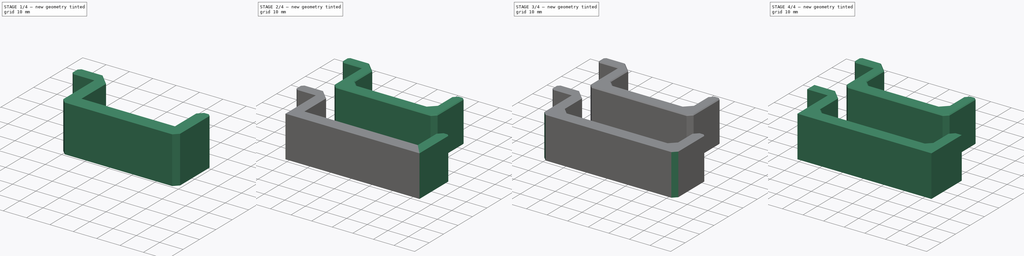
[diagram: build sequence overview — one tinted view per stage of 4, left to right]
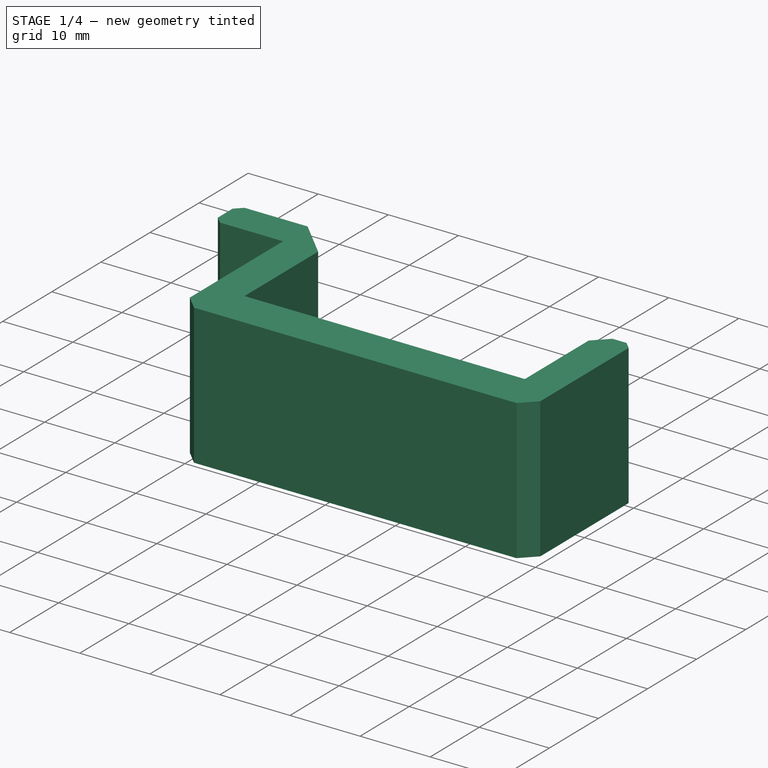
[diagram: stage 1 of 4 — iso view after this stage's code; geometry added in this stage tinted green]
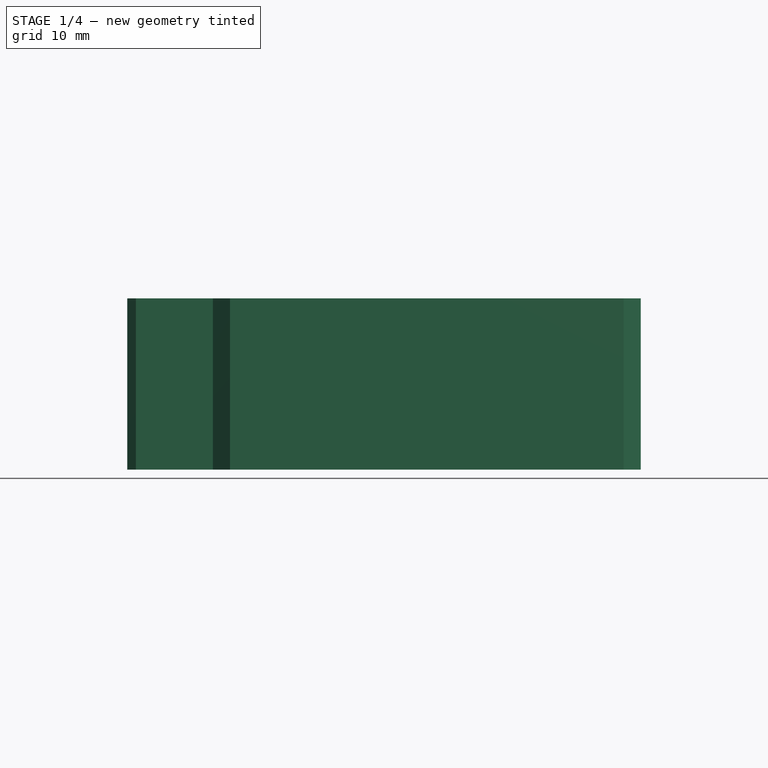
[diagram: stage 1 of 4 — front view after this stage's code; geometry added in this stage tinted green]
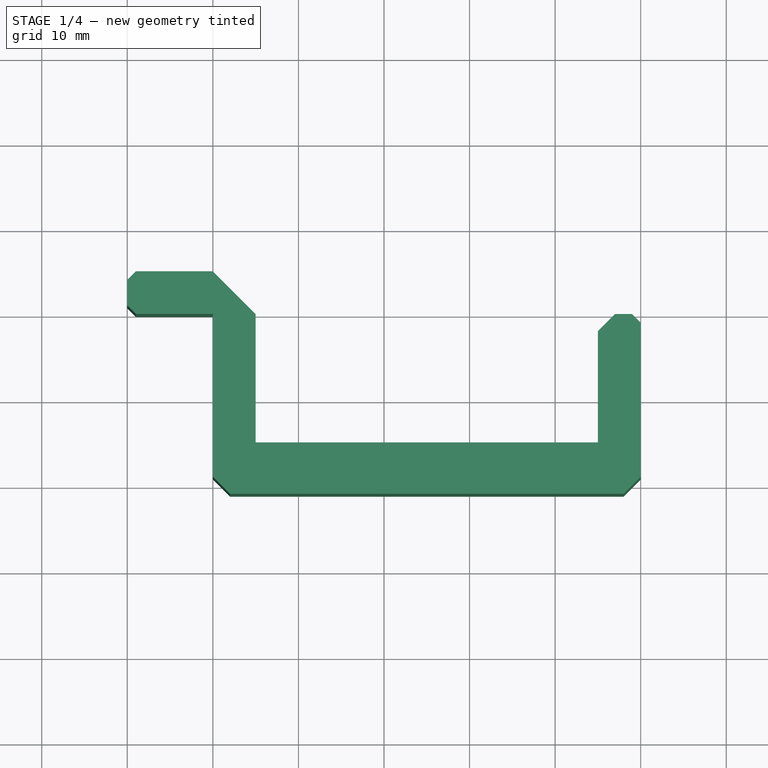
[diagram: stage 1 of 4 — top view after this stage's code; geometry added in this stage tinted green]
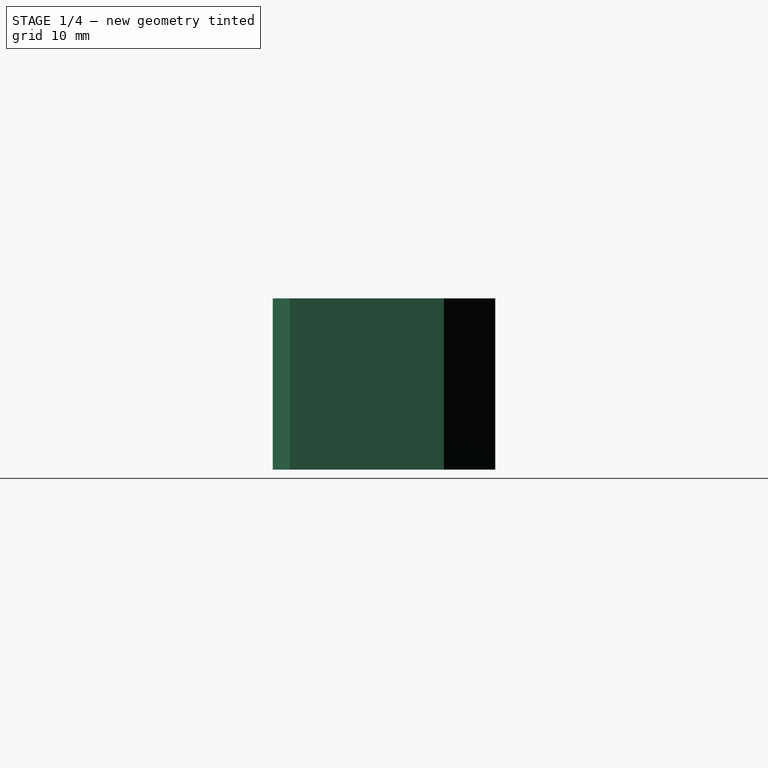
[diagram: stage 1 of 4 — right view after this stage's code; geometry added in this stage tinted green]
FCSTD DOCUMENT  (FreeCAD 0.18R14555 (Git shallow))
Label: rail-build-helper
License: All rights reserved
LicenseURL: http://en.wikipedia.org/wiki/All_rights_reserved
objects: Part::Chamfer×9, Part::Feature×2, Sketcher::SketchObject×1, PartDesign::Pad×1, PartDesign::Body×1
note: 15 computed .brp shape members not serialized (recipe doc carries the construction recipe); baked Part::Feature solids carry a one-line shape summary decoded from their .brp

FEATURE [Part::Chamfer] Chamfer005
  Base = -> Body001
  Edges = 3 edges r=1: [Edge1,Edge11,Edge32]
FEATURE [Part::Chamfer] Chamfer006
  Base = -> Chamfer005
  Edges = 2 edges r=2: [Edge21,Edge36]
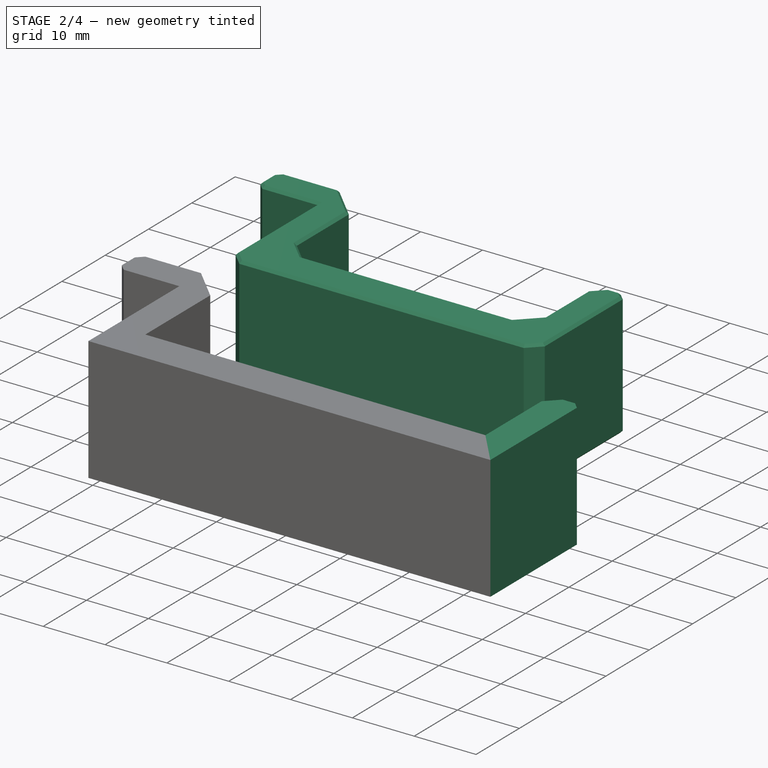
[diagram: stage 2 of 4 — iso view after this stage's code; geometry added in this stage tinted green]
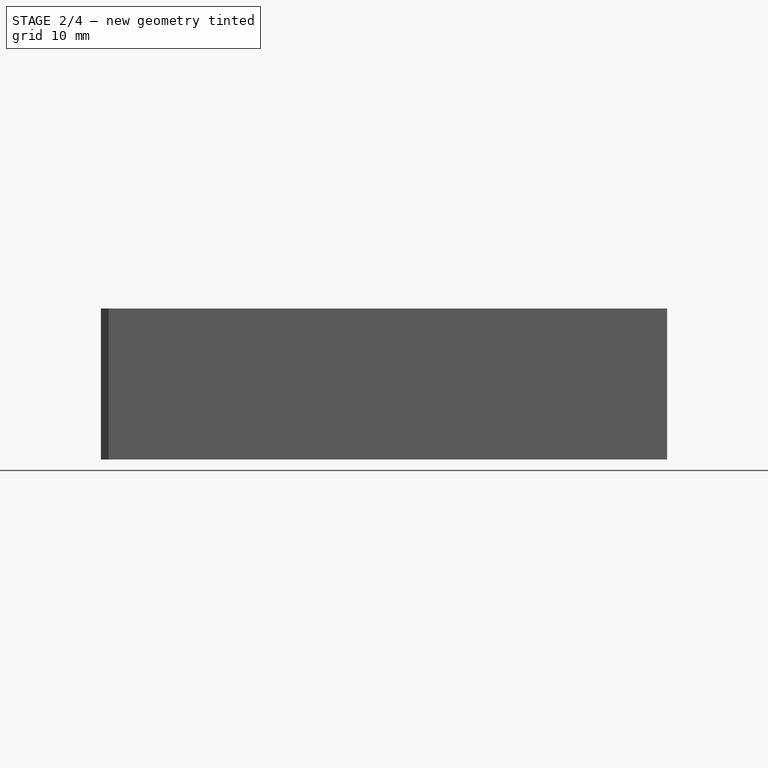
[diagram: stage 2 of 4 — front view after this stage's code; geometry added in this stage tinted green]
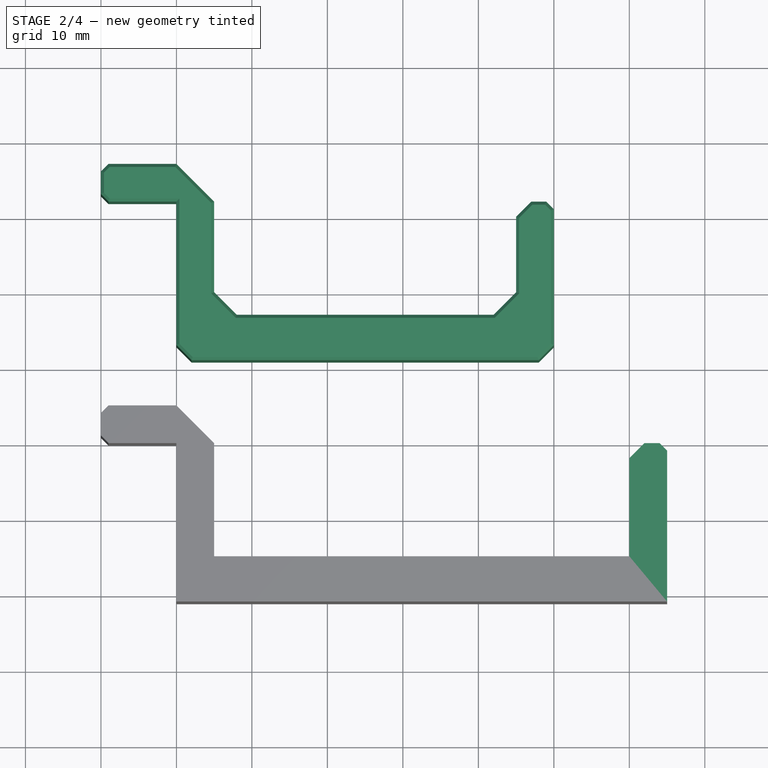
[diagram: stage 2 of 4 — top view after this stage's code; geometry added in this stage tinted green]
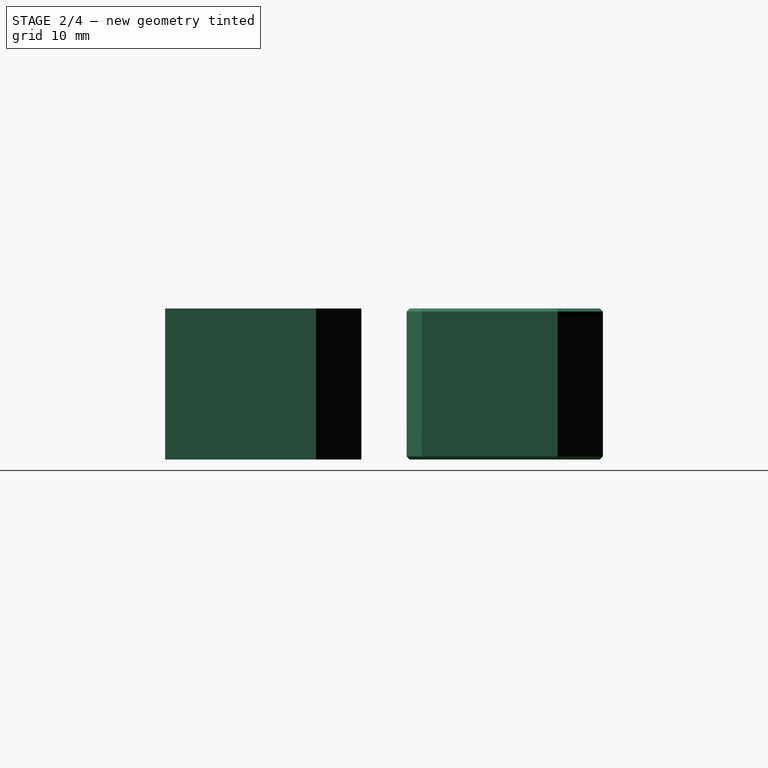
[diagram: stage 2 of 4 — right view after this stage's code; geometry added in this stage tinted green]
FEATURE [PartDesign::Body] Body
  Group = -> [Sketch,Pad]
  Origin = -> Origin
  Tip = -> Pad
FEATURE [Part::Feature] Body002  label="65mm-spacer"
  shape: bbox 75 x 26 x 20 mm, 14 faces (baked)
FEATURE [Part::Chamfer] Chamfer
  Base = -> Body002
  Edges = 3 edges r=1: [Edge1,Edge11,Edge32]
FEATURE [Part::Chamfer] Chamfer007
  Base = -> Chamfer006
  Edges = 2 edges r=3: [Edge47,Edge49]
FEATURE [Part::Chamfer] Chamfer008  label="50"
  Base = -> Chamfer007
  Edges = 38 edges r=0.4: [Edge1,Edge2,Edge3,Edge4,Edge5,Edge6,Edge7,Edge8,Edge9,Edge10,Edge11,Edge12,Edge13,Edge14,Edge15,Edge16,Edge17,Edge18,Edge19,Edge22,Edge24,Edge26,Edge28,Edge30,Edge32,Edge34,Edge36,Edge38,Edge40,Edge42,Edge44,Edge46,Edge48,Edge50,Edge52,Edge54,Edge56,Edge57]
  Placement = pos=(0,32,0) rot=(0,0,1;0rad)
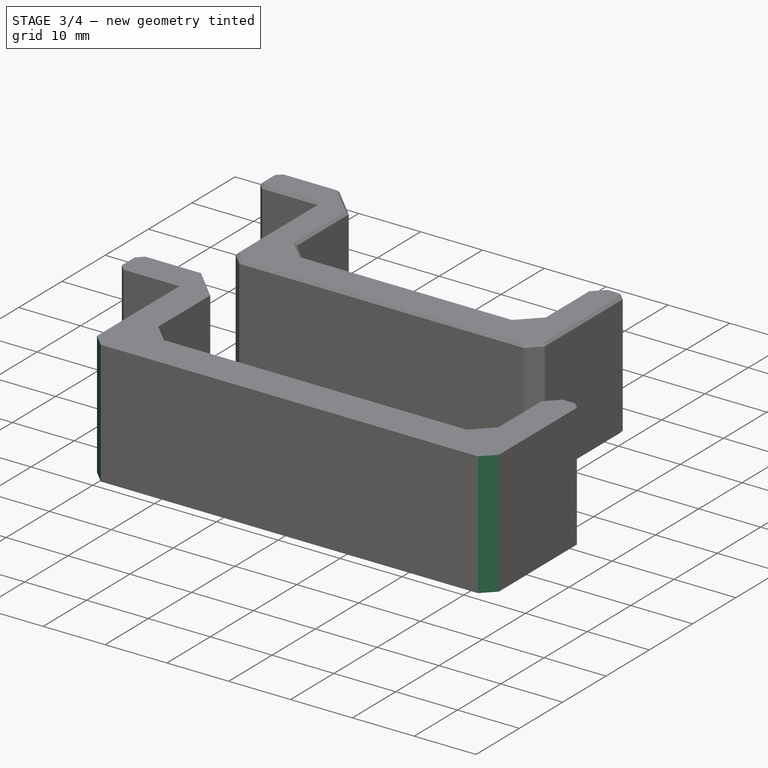
[diagram: stage 3 of 4 — iso view after this stage's code; geometry added in this stage tinted green]
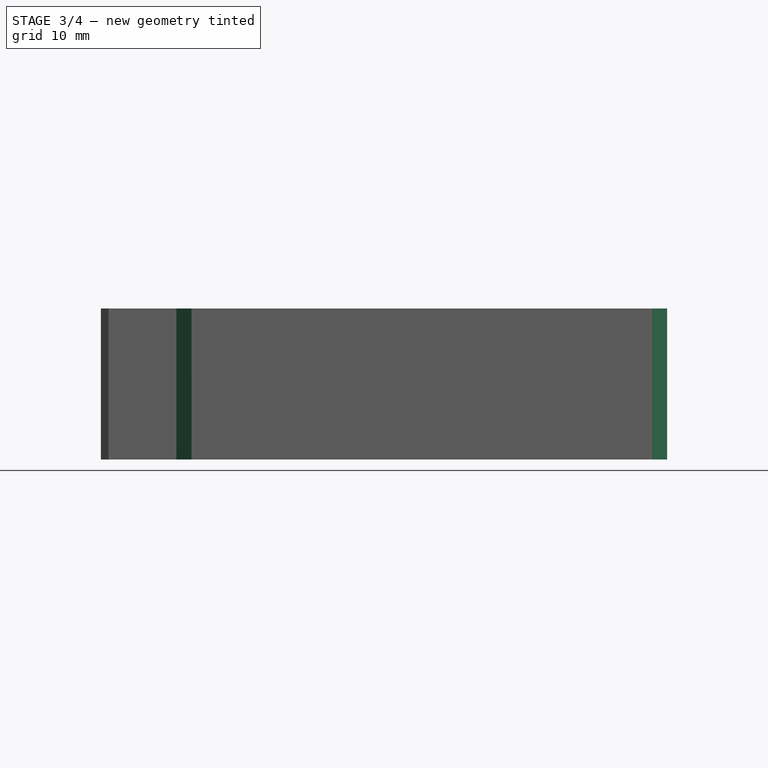
[diagram: stage 3 of 4 — front view after this stage's code; geometry added in this stage tinted green]
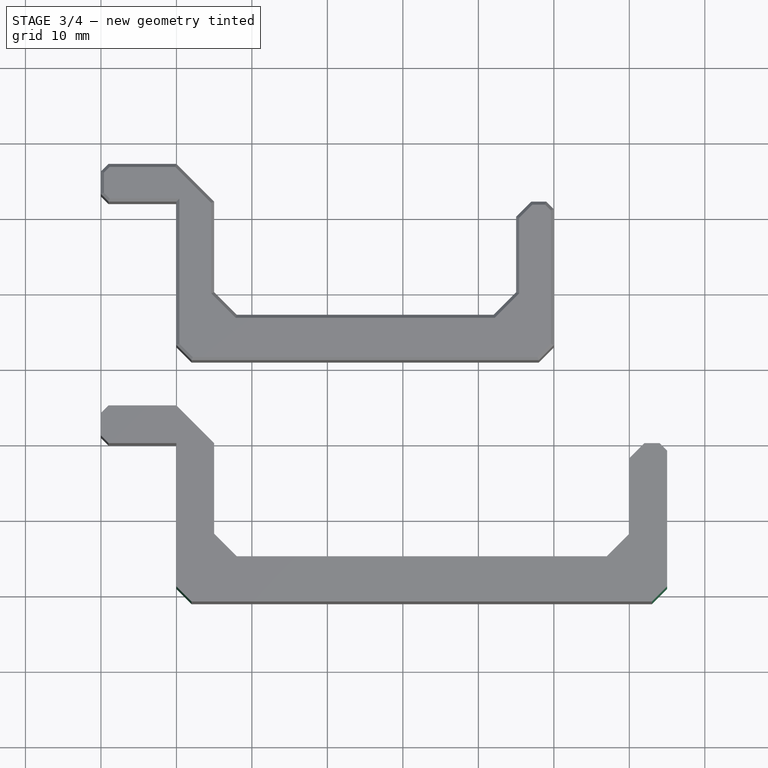
[diagram: stage 3 of 4 — top view after this stage's code; geometry added in this stage tinted green]
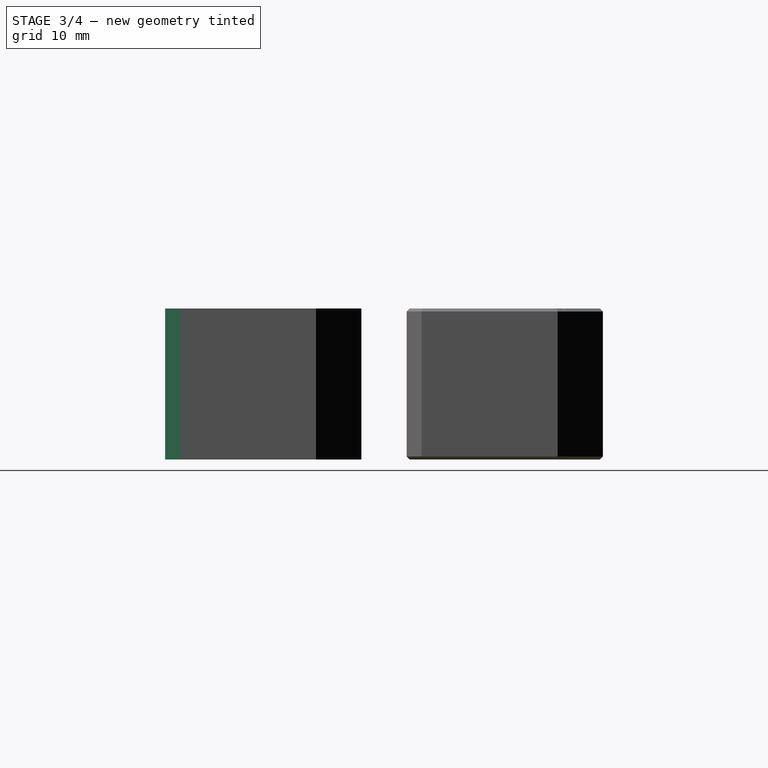
[diagram: stage 3 of 4 — right view after this stage's code; geometry added in this stage tinted green]
FEATURE [Part::Chamfer] Chamfer001
  Base = -> Chamfer
  Edges = 1 edges r=2: [Edge21]
FEATURE [Part::Chamfer] Chamfer002
  Base = -> Chamfer001
  Edges = 2 edges r=3: [Edge44,Edge46]
FEATURE [Part::Chamfer] Chamfer003
  Base = -> Chamfer002
  Edges = 1 edges r=2: [Edge36]
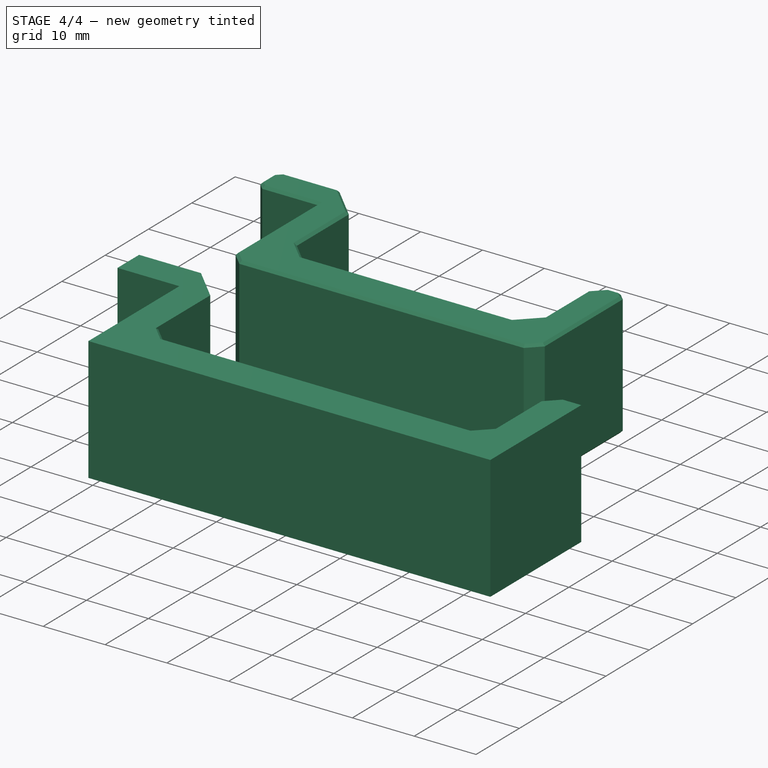
[diagram: stage 4 of 4 — iso view after this stage's code; geometry added in this stage tinted green]
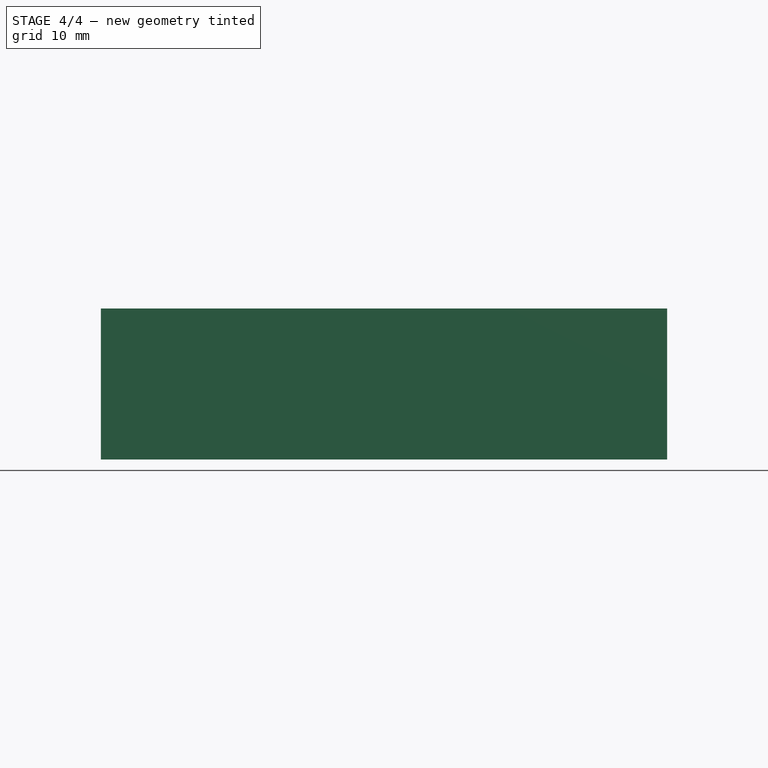
[diagram: stage 4 of 4 — front view after this stage's code; geometry added in this stage tinted green]
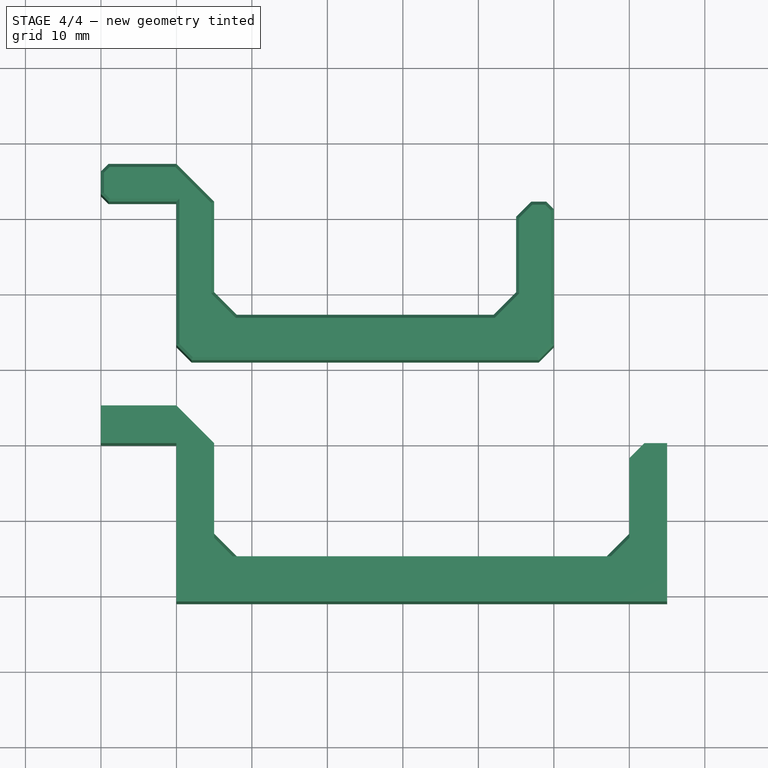
[diagram: stage 4 of 4 — top view after this stage's code; geometry added in this stage tinted green]
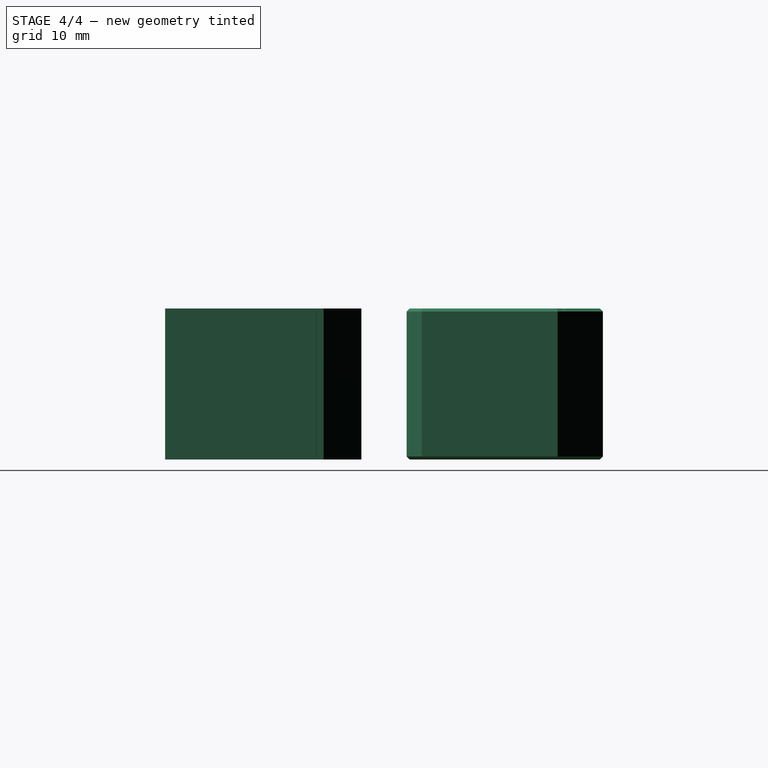
[diagram: stage 4 of 4 — right view after this stage's code; geometry added in this stage tinted green]
FEATURE [Sketcher::SketchObject] Sketch
  MapMode = 5
  Support = -> [XY_Plane]
  sketch-geometry (12):
    g0: LineSegment StartX=0 StartY=0 StartZ=0 EndX=10 EndY=0 EndZ=0
    g1: LineSegment StartX=10 StartY=0 StartZ=0 EndX=10 EndY=-21 EndZ=0
    g2: LineSegment StartX=10 StartY=-21 StartZ=0 EndX=75 EndY=-21 EndZ=0
    g3: LineSegment StartX=75 StartY=-21 StartZ=0 EndX=75 EndY=0 EndZ=0
    g4: LineSegment StartX=0 StartY=0 StartZ=0 EndX=0 EndY=5 EndZ=0
    g5: LineSegment StartX=0 StartY=5 StartZ=0 EndX=10 EndY=5 EndZ=0
    g6: LineSegment StartX=10 StartY=5 StartZ=0 EndX=15 EndY=8.9e-15 EndZ=0
    g7: LineSegment StartX=75 StartY=0 StartZ=0 EndX=72 EndY=0 EndZ=0
    g8: LineSegment StartX=72 StartY=0 StartZ=0 EndX=70 EndY=-2 EndZ=0
    g9: LineSegment StartX=15 StartY=8.9e-15 StartZ=0 EndX=15 EndY=-15 EndZ=0
    g10: LineSegment StartX=70 StartY=-2 StartZ=0 EndX=70 EndY=-15 EndZ=0
    g11: LineSegment StartX=15 StartY=-15 StartZ=0 EndX=70 EndY=-15 EndZ=0
  constraints (35):
    c: DistanceX(g0,g0) = 10
    c: Coincident(g-1,g0)
    c: Coincident(g0,g1)
    c: Horizontal(g0)
    c: Vertical(g1)
    c: DistanceY(g1,g1) = 21
    c: Horizontal(g2)
    c: DistanceX(g2,g2) = 65
    c: Coincident(g1,g2)
    c: Vertical(g3)
    c: DistanceY(g3,g3) = 21
    c: Coincident(g2,g3)
    c: Horizontal(g5)
    c: DistanceX(g5,g5) = 10
    c: Vertical(g4)
    c: DistanceY(g4,g4) = 5
    c: Coincident(g0,g4)
    c: Coincident(g4,g5)
    c: Coincident(g5,g6)
    c: Angle(g5,g6) = 2.35619
    c: DistanceX(g0,g6) = 5
    c: Coincident(g3,g7)
    c: Horizontal(g7)
    c: DistanceX(g7,g7) = 3
    c: Coincident(g7,g8)
    c: Angle(g8,g7) = 2.35619
    c: DistanceX(g8,g7) = 2
    c: Vertical(g9)
    c: Coincident(g6,g9)
    c: DistanceY(g9,g9) = 15
    c: Vertical(g10)
    c: Coincident(g8,g10)
    c: DistanceY(g10,g10) = 13
    c: Coincident(g9,g11)
    c: Coincident(g10,g11)
FEATURE [Part::Feature] Body001  label="50mm-spacer"
  shape: bbox 60 x 26 x 20 mm, 14 faces (baked)
FEATURE [PartDesign::Pad] Pad
  Length = 20
  Length2 = 100
  Profile = -> Sketch
  Type = 0
FEATURE [Part::Chamfer] Chamfer004  label="65"
  Base = -> Chamfer003
  Edges = 38 edges r=0.4: [Edge1,Edge2,Edge3,Edge4,Edge5,Edge6,Edge7,Edge8,Edge9,Edge10,Edge11,Edge12,Edge13,Edge14,Edge15,Edge16,Edge17,Edge18,Edge19,Edge22,Edge24,Edge26,Edge28,Edge30,Edge32,Edge34,Edge36,Edge38,Edge40,Edge42,Edge44,Edge46,Edge48,Edge50,Edge52,Edge54,Edge56,Edge57]
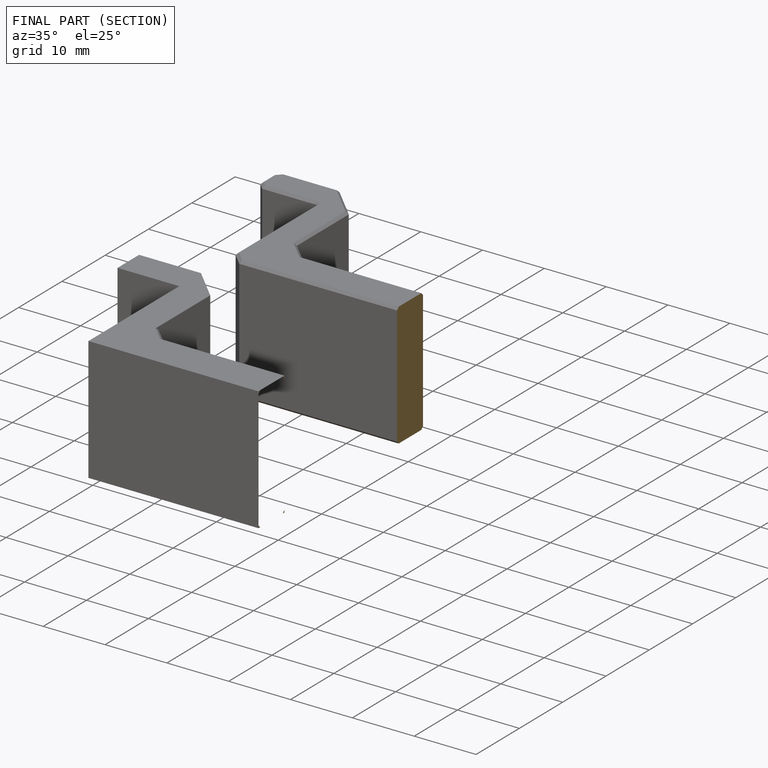
[diagram: finished part — half-section view (interior)]
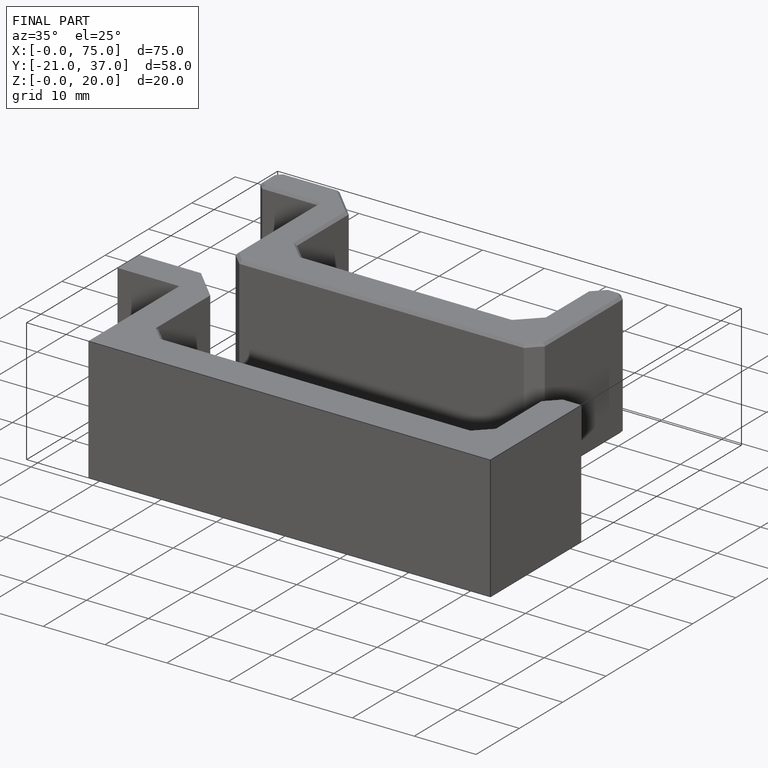
[diagram: finished part — iso view with bounding-box wireframe]
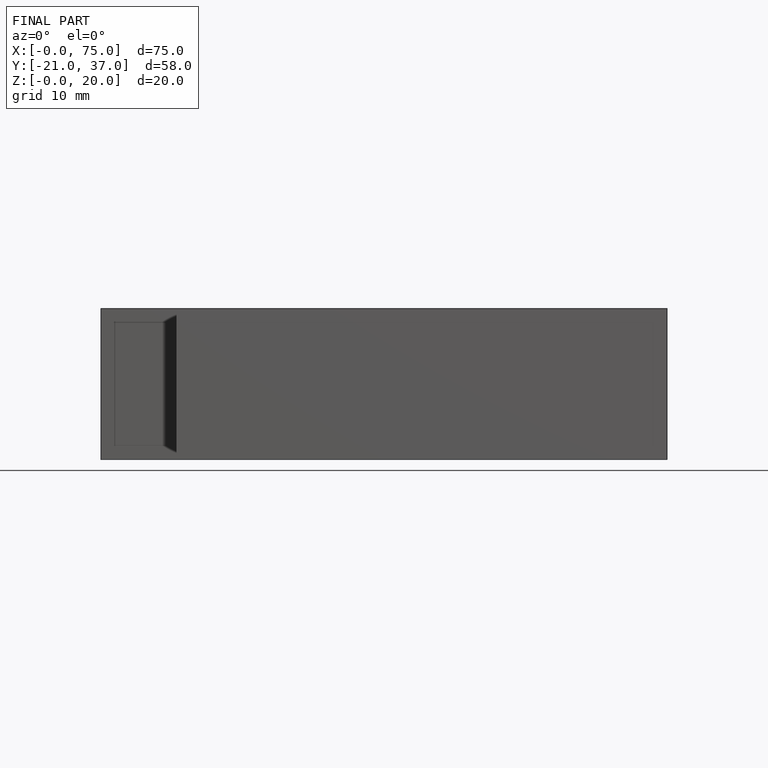
[diagram: finished part — front view with bounding-box wireframe]
